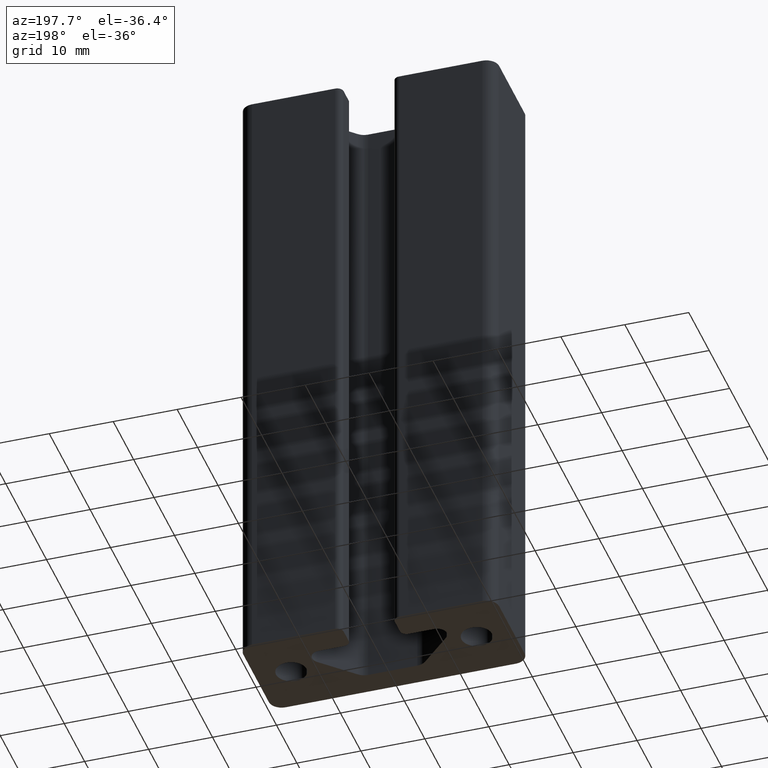
[diagram: clean part render]
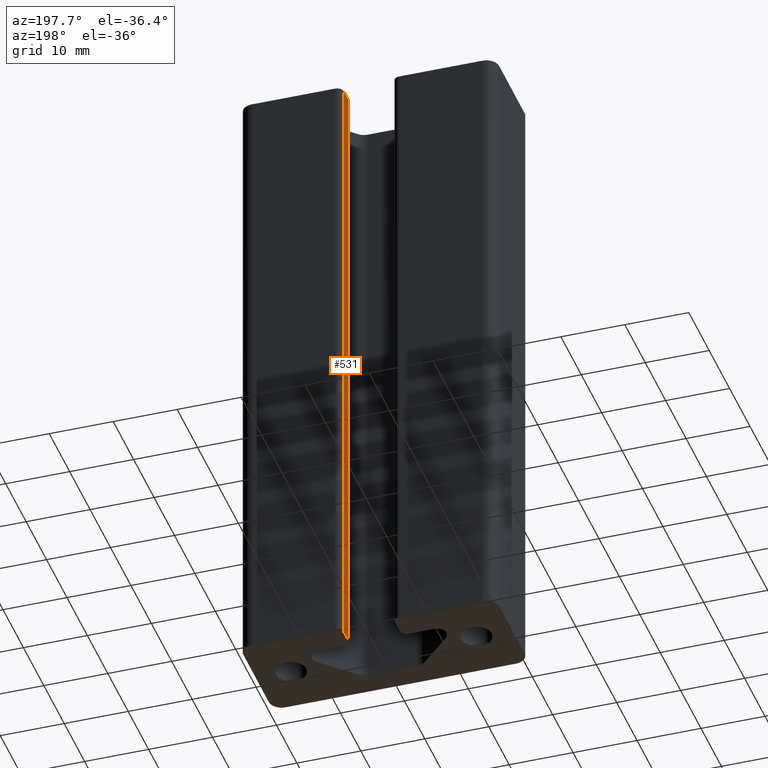
[diagram: same view with one face highlighted and labeled with its STEP entity id]
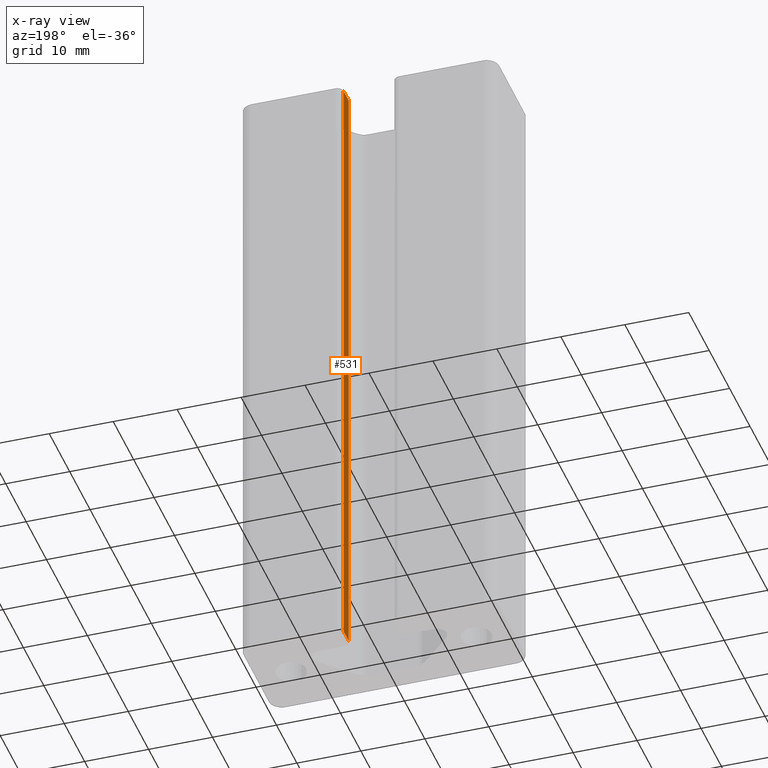
[diagram: x-ray of the same camera — body ghosted, the highlighted face saturated]
A machine part, auxiliary view. The second image highlights one B-rep face of the part: STEP entity #531.
The next image is the same camera in x-ray: the body ghosted, the highlighted face saturated — about 0% of this face is hidden behind the body in this view.
In plain terms, the highlighted planar face has unit normal (-1, 0, 0).
Its self-contained STEP definition (entity closure, byte-faithful):
#79=FACE_OUTER_BOUND('',#109,.T.);
#109=EDGE_LOOP('',(#409,#410,#411,#412));
#153=LINE('',#859,#201);
#154=LINE('',#863,#202);
#155=LINE('',#865,#203);
#156=LINE('',#866,#204);
#201=VECTOR('',#697,100.);
#202=VECTOR('',#702,2.499999995949);
#203=VECTOR('',#703,100.);
#204=VECTOR('',#704,2.499999995949);
#253=VERTEX_POINT('',#856);
#254=VERTEX_POINT('',#858);
#255=VERTEX_POINT('',#862);
#256=VERTEX_POINT('',#864);
#318=EDGE_CURVE('',#254,#253,#153,.T.);
#320=EDGE_CURVE('',#253,#255,#154,.T.);
#321=EDGE_CURVE('',#256,#255,#155,.T.);
#322=EDGE_CURVE('',#254,#256,#156,.T.);
#409=ORIENTED_EDGE('',*,*,#320,.T.);
#410=ORIENTED_EDGE('',*,*,#321,.F.);
#411=ORIENTED_EDGE('',*,*,#322,.F.);
#412=ORIENTED_EDGE('',*,*,#318,.T.);
#508=PLANE('',#579);
#531=ADVANCED_FACE('',(#79),#508,.T.);
#579=AXIS2_PLACEMENT_3D('',#861,#700,#701);
#697=DIRECTION('',(0.,0.,1.));
#700=DIRECTION('center_axis',(-1.,0.,0.));
#701=DIRECTION('ref_axis',(0.,0.,1.));
#702=DIRECTION('',(0.,1.,0.));
#703=DIRECTION('',(0.,0.,1.));
#704=DIRECTION('',(0.,1.,0.));
#856=CARTESIAN_POINT('',(4.,4.75000000405095,100.));
#858=CARTESIAN_POINT('',(4.,4.75000000405095,0.));
#859=CARTESIAN_POINT('',(4.,4.75000000405095,0.));
#861=CARTESIAN_POINT('Origin',(4.,4.75000000405095,0.));
#862=CARTESIAN_POINT('',(4.,7.24999999999995,100.));
#863=CARTESIAN_POINT('',(4.,2.37500000303819,100.));
#864=CARTESIAN_POINT('',(4.,7.24999999999995,0.));
#865=CARTESIAN_POINT('',(4.,7.24999999999995,0.));
#866=CARTESIAN_POINT('',(4.,2.37500000303819,0.));